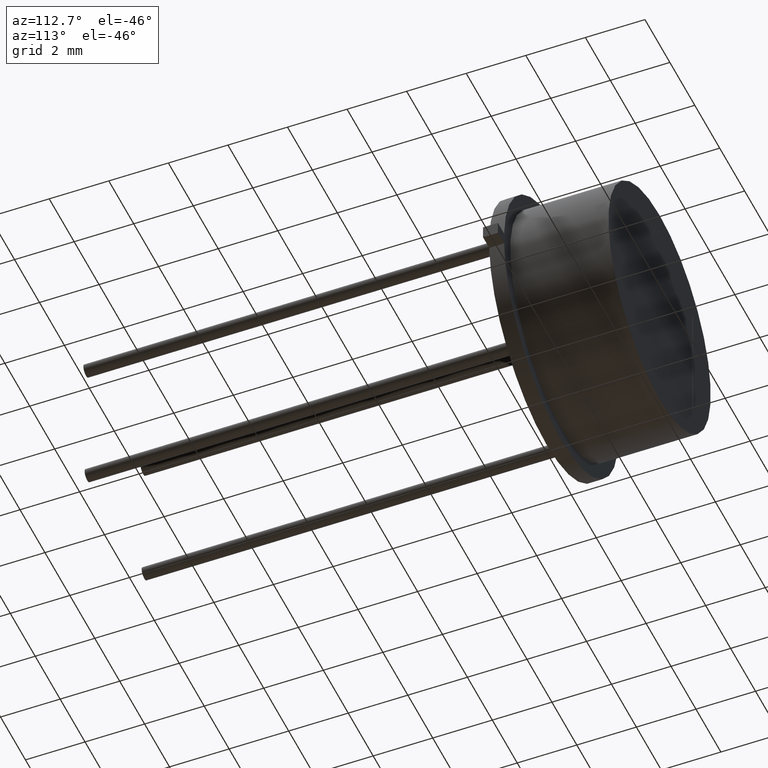
[diagram: clean part render]
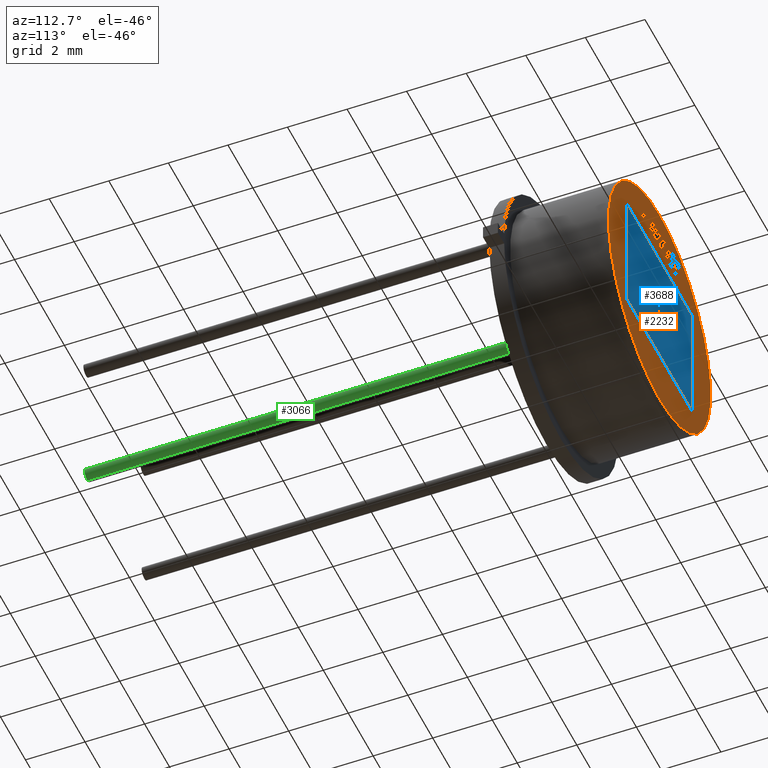
[diagram: same view with three faces highlighted in distinct colors, each labeled with its STEP entity id]
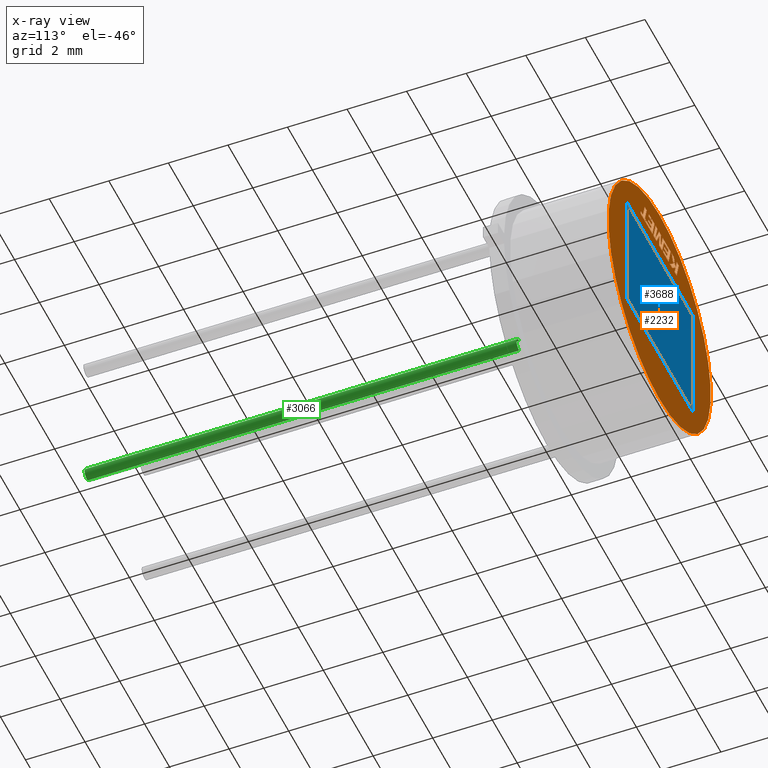
[diagram: x-ray of the same camera — body ghosted, the three highlighted faces saturated]
A machine part, auxiliary view with three faces highlighted in distinct colors.
The next image is the same camera in x-ray (body ghosted, the three faces saturated) — at least one of them is partly hidden behind the body in this view.
Their STEP definitions:

[orange] entity #2232 — the highlighted planar face has unit normal (0, 1, 0).
#8 = DIRECTION ( 'NONE',  ( 0.2740217765954173212, 0.000000000000000000, -0.9617234872620566977 ) ) ;
#21 = VERTEX_POINT ( 'NONE', #585 ) ;
#24 = LINE ( 'NONE', #2102, #407 ) ;
#46 = LINE ( 'NONE', #1209, #1315 ) ;
#51 = DIRECTION ( 'NONE',  ( -1.000000000000000000, 0.000000000000000000, 0.000000000000000000 ) ) ;
#58 = CARTESIAN_POINT ( 'NONE',  ( 0.2352780391836851726, 3.799999999999999822, 2.722722491663860378 ) ) ;
#60 = ORIENTED_EDGE ( 'NONE', *, *, #1427, .F. ) ;
#64 = CARTESIAN_POINT ( 'NONE',  ( -1.197993548261745200, 3.799999999999999822, 2.722722491663860378 ) ) ;
#75 = EDGE_CURVE ( 'NONE', #1668, #3182, #846, .T. ) ;
#92 = DIRECTION ( 'NONE',  ( 0.2793947940814922593, 0.000000000000000000, -0.9601763114346033579 ) ) ;
#97 = EDGE_CURVE ( 'NONE', #3127, #3292, #3133, .T. ) ;
#105 = EDGE_LOOP ( 'NONE', ( #2840, #125, #2720, #1811, #1765, #1533, #3351, #1490, #2059, #2377, #3464, #664, #2420, #1518, #2553, #2875, #994, #616, #484, #603, #568, #2386, #618 ) ) ;
#108 = VERTEX_POINT ( 'NONE', #3666 ) ;
#116 = VERTEX_POINT ( 'NONE', #2245 ) ;
#118 = ORIENTED_EDGE ( 'NONE', *, *, #793, .T. ) ;
#119 = DIRECTION ( 'NONE',  ( 0.2762437428917413618, 0.000000000000000000, -0.9610876102172796198 ) ) ;
#125 = ORIENTED_EDGE ( 'NONE', *, *, #788, .F. ) ;
#127 = VERTEX_POINT ( 'NONE', #1354 ) ;
#131 = CARTESIAN_POINT ( 'NONE',  ( -1.277915116476191937, 3.799999999999999822, 2.999153239349828137 ) ) ;
#135 = EDGE_CURVE ( 'NONE', #3507, #1576, #3436, .T. ) ;
#141 = VECTOR ( 'NONE', #1709, 1000.000000000000114 ) ;
#142 = CARTESIAN_POINT ( 'NONE',  ( -0.3063844529080870238, 3.799999999999999822, 2.837851701259268555 ) ) ;
#155 = VERTEX_POINT ( 'NONE', #390 ) ;
#159 = VECTOR ( 'NONE', #3352, 1000.000000000000000 ) ;
#164 = VECTOR ( 'NONE', #608, 1000.000000000000000 ) ;
#177 = DIRECTION ( 'NONE',  ( 0.2732148821746350209, 0.000000000000000000, -0.9619530280415464762 ) ) ;
#193 = CARTESIAN_POINT ( 'NONE',  ( 0.3266616003465986351, 3.799999999999999822, 3.327567856916902489 ) ) ;
#214 = EDGE_CURVE ( 'NONE', #3503, #2599, #2404, .T. ) ;
#217 = VERTEX_POINT ( 'NONE', #1216 ) ;
#238 = DIRECTION ( 'NONE',  ( 1.000000000000000000, 0.000000000000000000, 0.000000000000000000 ) ) ;
#239 = EDGE_CURVE ( 'NONE', #2314, #1973, #1868, .T. ) ;
#240 = FACE_OUTER_BOUND ( 'NONE', #2975, .T. ) ;
#271 = CARTESIAN_POINT ( 'NONE',  ( -1.014874821732917320, 3.799999999999999822, 2.722722491663860378 ) ) ;
#273 = DIRECTION ( 'NONE',  ( 1.000000000000000000, 0.000000000000000000, 0.000000000000000000 ) ) ;
#274 = CARTESIAN_POINT ( 'NONE',  ( 0.02096596677082979837, 3.799999999999999822, 3.154831791910173155 ) ) ;
#275 = EDGE_CURVE ( 'NONE', #2193, #442, #2378, .T. ) ;
#278 = CARTESIAN_POINT ( 'NONE',  ( 1.544396534510452446, 3.799999999999999822, 2.722722491663860378 ) ) ;
#280 = ORIENTED_EDGE ( 'NONE', *, *, #2206, .F. ) ;
#293 = DIRECTION ( 'NONE',  ( 0.7145695586381818343, -0.000000000000000000, -0.6995643972270416677 ) ) ;
#298 = VECTOR ( 'NONE', #1841, 1000.000000000000000 ) ;
#300 = VECTOR ( 'NONE', #416, 999.9999999999998863 ) ;
#308 = LINE ( 'NONE', #3185, #1702 ) ;
#316 = LINE ( 'NONE', #890, #896 ) ;
#324 = VERTEX_POINT ( 'NONE', #483 ) ;
#326 = ORIENTED_EDGE ( 'NONE', *, *, #3218, .F. ) ;
#328 = VECTOR ( 'NONE', #1692, 1000.000000000000000 ) ;
#334 = DIRECTION ( 'NONE',  ( -0.3829140317376996117, -0.000000000000000000, -0.9237839814038669717 ) ) ;
#344 = VECTOR ( 'NONE', #1333, 1000.000000000000114 ) ;
#368 = VERTEX_POINT ( 'NONE', #3694 ) ;
#377 = CARTESIAN_POINT ( 'NONE',  ( -1.277915116476191937, 3.799999999999999822, 2.999153239349828137 ) ) ;
#378 = EDGE_CURVE ( 'NONE', #962, #116, #2293, .T. ) ;
#380 = VERTEX_POINT ( 'NONE', #1434 ) ;
#390 = CARTESIAN_POINT ( 'NONE',  ( 0.9068115928987536822, 3.799999999999999822, 3.062168003293149088 ) ) ;
#398 = ORIENTED_EDGE ( 'NONE', *, *, #1995, .F. ) ;
#407 = VECTOR ( 'NONE', #3554, 999.9999999999998863 ) ;
#410 = CARTESIAN_POINT ( 'NONE',  ( -0.6894275595086473141, 3.799999999999999822, 3.212495659277052162 ) ) ;
#416 = DIRECTION ( 'NONE',  ( -0.2763173343569890750, 0.000000000000000000, 0.9610664548998929524 ) ) ;
#423 = CARTESIAN_POINT ( 'NONE',  ( 0.1729610434427197030, 3.799999999999999822, 3.327567856916902489 ) ) ;
#433 = CARTESIAN_POINT ( 'NONE',  ( -0.3063844529080870238, 3.799999999999999822, 2.837851701259268555 ) ) ;
#437 = LINE ( 'NONE', #3024, #3580 ) ;
#442 = VERTEX_POINT ( 'NONE', #1703 ) ;
#457 = EDGE_CURVE ( 'NONE', #1576, #1369, #1759, .T. ) ;
#459 = VECTOR ( 'NONE', #3060, 1000.000000000000000 ) ;
#462 = CARTESIAN_POINT ( 'NONE',  ( 0.04422658996259751230, 3.799999999999999822, 2.722722491663860378 ) ) ;
#483 = CARTESIAN_POINT ( 'NONE',  ( -1.372045535075434586, 3.799999999999999822, 3.327567856916902045 ) ) ;
#484 = ORIENTED_EDGE ( 'NONE', *, *, #3184, .F. ) ;
#492 = CARTESIAN_POINT ( 'NONE',  ( 0.8564314141849102002, 3.799999999999999822, 3.327567856916902489 ) ) ;
#494 = DIRECTION ( 'NONE',  ( -0.4443210308328943148, 0.000000000000000000, 0.8958676361827087042 ) ) ;
#501 = ORIENTED_EDGE ( 'NONE', *, *, #3627, .F. ) ;
#505 = DIRECTION ( 'NONE',  ( 1.000000000000000000, 0.000000000000000000, 0.000000000000000000 ) ) ;
#513 = LINE ( 'NONE', #1682, #1991 ) ;
#524 = CARTESIAN_POINT ( 'NONE',  ( -0.7205248232080316839, 3.799999999999999822, 2.722722491663860378 ) ) ;
#536 = LINE ( 'NONE', #1418, #2850 ) ;
#544 = CARTESIAN_POINT ( 'NONE',  ( 1.204947344205162141, 3.799999999999999822, 3.327567856916902489 ) ) ;
#567 = CARTESIAN_POINT ( 'NONE',  ( -0.5819581821491104368, 3.799999999999999822, 2.837851701259268555 ) ) ;
#568 = ORIENTED_EDGE ( 'NONE', *, *, #135, .F. ) ;
#572 = VECTOR ( 'NONE', #2805, 1000.000000000000000 ) ;
#577 = CARTESIAN_POINT ( 'NONE',  ( 0.5734277401129395102, 3.799999999999999822, 2.722722491663860378 ) ) ;
#581 = CARTESIAN_POINT ( 'NONE',  ( -0.7205248232080316839, 3.799999999999999822, 2.722722491663860378 ) ) ;
#585 = CARTESIAN_POINT ( 'NONE',  ( -0.08835785754342240228, 3.799999999999999822, 2.789089926475185610 ) ) ;
#595 = CARTESIAN_POINT ( 'NONE',  ( -0.3550873766402318221, 3.799999999999999822, 2.950352843563088800 ) ) ;
#603 = ORIENTED_EDGE ( 'NONE', *, *, #457, .F. ) ;
#608 = DIRECTION ( 'NONE',  ( -0.2762033010251998544, -0.000000000000000000, 0.9610992334315863195 ) ) ;
#612 = DIRECTION ( 'NONE',  ( 0.9999891854650020395, 0.000000000000000000, 0.004650693823686223409 ) ) ;
#614 = VECTOR ( 'NONE', #92, 1000.000000000000114 ) ;
#616 = ORIENTED_EDGE ( 'NONE', *, *, #3574, .F. ) ;
#618 = ORIENTED_EDGE ( 'NONE', *, *, #621, .F. ) ;
#621 = EDGE_CURVE ( 'NONE', #2967, #3542, #437, .T. ) ;
#623 = CARTESIAN_POINT ( 'NONE',  ( -1.146090599062761228, 3.799999999999999822, 3.327567856916902045 ) ) ;
#631 = ORIENTED_EDGE ( 'NONE', *, *, #3668, .F. ) ;
#664 = ORIENTED_EDGE ( 'NONE', *, *, #214, .F. ) ;
#677 = EDGE_CURVE ( 'NONE', #726, #1099, #536, .T. ) ;
#682 = CARTESIAN_POINT ( 'NONE',  ( -1.370213795595926376, 3.799999999999999822, 2.722722491663860378 ) ) ;
#704 = CARTESIAN_POINT ( 'NONE',  ( -0.2736853371326442574, 3.799999999999999822, 2.722722491663860378 ) ) ;
#724 = VERTEX_POINT ( 'NONE', #864 ) ;
#725 = CARTESIAN_POINT ( 'NONE',  ( 0.9890927199944663517, 3.799999999999999822, 2.838651707748462094 ) ) ;
#726 = VERTEX_POINT ( 'NONE', #577 ) ;
#735 = VERTEX_POINT ( 'NONE', #3433 ) ;
#751 = EDGE_CURVE ( 'NONE', #380, #2047, #1740, .T. ) ;
#761 = ORIENTED_EDGE ( 'NONE', *, *, #1489, .F. ) ;
#775 = CARTESIAN_POINT ( 'NONE',  ( 1.032649854865216765, 3.799999999999999822, 3.327567856916902489 ) ) ;
#788 = EDGE_CURVE ( 'NONE', #116, #3741, #308, .T. ) ;
#789 = DIRECTION ( 'NONE',  ( 0.4668459304955159817, 0.000000000000000000, -0.8843386665637638089 ) ) ;
#793 = EDGE_CURVE ( 'NONE', #442, #2193, #1527, .T. ) ;
#812 = ORIENTED_EDGE ( 'NONE', *, *, #2894, .F. ) ;
#846 = LINE ( 'NONE', #2262, #3596 ) ;
#854 = CARTESIAN_POINT ( 'NONE',  ( 5.021051876504147385E-16, 3.799999999999999822, 4.099999999999999645 ) ) ;
#857 = VECTOR ( 'NONE', #3502, 1000.000000000000000 ) ;
#864 = CARTESIAN_POINT ( 'NONE',  ( 2.650000000000000355, 3.799999999999999822, 2.149999999999999911 ) ) ;
#872 = VERTEX_POINT ( 'NONE', #1199 ) ;
#886 = DIRECTION ( 'NONE',  ( -1.000000000000000000, 0.000000000000000000, 0.000000000000000000 ) ) ;
#890 = CARTESIAN_POINT ( 'NONE',  ( -0.8158258510624085691, 3.799999999999999822, 2.722722491663860378 ) ) ;
#896 = VECTOR ( 'NONE', #293, 1000.000000000000114 ) ;
#901 = VERTEX_POINT ( 'NONE', #2935 ) ;
#904 = DIRECTION ( 'NONE',  ( 0.000000000000000000, 0.000000000000000000, 1.000000000000000000 ) ) ;
#910 = DIRECTION ( 'NONE',  ( -1.000000000000000000, 0.000000000000000000, 0.000000000000000000 ) ) ;
#911 = EDGE_CURVE ( 'NONE', #324, #2668, #2431, .T. ) ;
#919 = EDGE_CURVE ( 'NONE', #2047, #1032, #2414, .T. ) ;
#930 = CARTESIAN_POINT ( 'NONE',  ( 1.510830940448968152, 3.799999999999999822, 2.839520033916167918 ) ) ;
#943 = CARTESIAN_POINT ( 'NONE',  ( -2.649999999999999467, 3.799999999999999822, 2.149999999999999911 ) ) ;
#962 = VERTEX_POINT ( 'NONE', #193 ) ;
#967 = VECTOR ( 'NONE', #1525, 1000.000000000000000 ) ;
#974 = CARTESIAN_POINT ( 'NONE',  ( -0.8945749709263431937, 3.799999999999999822, 3.327567856916902489 ) ) ;
#978 = EDGE_CURVE ( 'NONE', #1232, #724, #1026, .T. ) ;
#992 = DIRECTION ( 'NONE',  ( 0.2755265765475247153, -0.000000000000000000, -0.9612934544747513410 ) ) ;
#994 = ORIENTED_EDGE ( 'NONE', *, *, #75, .F. ) ;
#1004 = ORIENTED_EDGE ( 'NONE', *, *, #1541, .F. ) ;
#1026 = LINE ( 'NONE', #2205, #3151 ) ;
#1032 = VERTEX_POINT ( 'NONE', #3604 ) ;
#1044 = LINE ( 'NONE', #2500, #1080 ) ;
#1068 = CARTESIAN_POINT ( 'NONE',  ( -1.372045535075434586, 3.799999999999999822, 3.327567856916902045 ) ) ;
#1074 = LINE ( 'NONE', #2032, #3010 ) ;
#1080 = VECTOR ( 'NONE', #505, 1000.000000000000000 ) ;
#1090 = CARTESIAN_POINT ( 'NONE',  ( -0.2133556524379435493, 3.799999999999999822, 2.722722491663860378 ) ) ;
#1097 = VECTOR ( 'NONE', #1763, 1000.000000000000000 ) ;
#1099 = VERTEX_POINT ( 'NONE', #1426 ) ;
#1111 = DIRECTION ( 'NONE',  ( 0.2759782365590804365, 0.000000000000000000, -0.9611638845408936316 ) ) ;
#1145 = CARTESIAN_POINT ( 'NONE',  ( 0.6043723584137968841, 3.799999999999999822, 3.212473590134040879 ) ) ;
#1148 = FACE_BOUND ( 'NONE', #2963, .T. ) ;
#1156 = ORIENTED_EDGE ( 'NONE', *, *, #1859, .F. ) ;
#1170 = LINE ( 'NONE', #2531, #2522 ) ;
#1188 = CARTESIAN_POINT ( 'NONE',  ( 0.3266616003465985241, 3.799999999999999822, 3.327567856916902489 ) ) ;
#1189 = ORIENTED_EDGE ( 'NONE', *, *, #1559, .F. ) ;
#1194 = EDGE_CURVE ( 'NONE', #3182, #3400, #2336, .T. ) ;
#1197 = CARTESIAN_POINT ( 'NONE',  ( -1.544035895002037861, 3.799999999999999822, 3.327567856916902045 ) ) ;
#1199 = CARTESIAN_POINT ( 'NONE',  ( 1.345229861249798820, 3.799999999999999822, 2.839506887099636501 ) ) ;
#1201 = LINE ( 'NONE', #462, #1513 ) ;
#1207 = VECTOR ( 'NONE', #2753, 1000.000000000000000 ) ;
#1209 = CARTESIAN_POINT ( 'NONE',  ( 0.3283388553289040557, 3.799999999999999822, 2.786496801997095929 ) ) ;
#1216 = CARTESIAN_POINT ( 'NONE',  ( 1.204947344205162141, 3.799999999999999822, 3.327567856916902489 ) ) ;
#1223 = VERTEX_POINT ( 'NONE', #2111 ) ;
#1232 = VERTEX_POINT ( 'NONE', #943 ) ;
#1252 = VECTOR ( 'NONE', #3693, 1000.000000000000114 ) ;
#1264 = LINE ( 'NONE', #544, #1398 ) ;
#1281 = VERTEX_POINT ( 'NONE', #3065 ) ;
#1303 = LINE ( 'NONE', #423, #1680 ) ;
#1306 = LINE ( 'NONE', #2462, #3673 ) ;
#1312 = EDGE_CURVE ( 'NONE', #368, #155, #1652, .T. ) ;
#1315 = VECTOR ( 'NONE', #2350, 1000.000000000000227 ) ;
#1330 = VERTEX_POINT ( 'NONE', #725 ) ;
#1333 = DIRECTION ( 'NONE',  ( -0.2765379750249964408, 0.000000000000000000, 0.9610029908221277006 ) ) ;
#1344 = LINE ( 'NONE', #1363, #2056 ) ;
#1354 = CARTESIAN_POINT ( 'NONE',  ( 0.04270527438447691004, 3.799999999999999822, 3.327567856916902489 ) ) ;
#1363 = CARTESIAN_POINT ( 'NONE',  ( -2.649999999999999911, 3.799999999999999822, -2.149999999999999911 ) ) ;
#1364 = EDGE_CURVE ( 'NONE', #21, #2757, #1306, .T. ) ;
#1369 = VERTEX_POINT ( 'NONE', #410 ) ;
#1372 = DIRECTION ( 'NONE',  ( 1.000000000000000000, 0.000000000000000000, 0.000000000000000000 ) ) ;
#1398 = VECTOR ( 'NONE', #119, 1000.000000000000114 ) ;
#1408 = CARTESIAN_POINT ( 'NONE',  ( -0.3506312490297152640, 3.799999999999999822, 3.327567856916902489 ) ) ;
#1414 = CARTESIAN_POINT ( 'NONE',  ( 0.9068115928987536822, 3.799999999999999822, 3.062168003293149088 ) ) ;
#1418 = CARTESIAN_POINT ( 'NONE',  ( 0.5734277401129395102, 3.799999999999999822, 2.722722491663860378 ) ) ;
#1426 = CARTESIAN_POINT ( 'NONE',  ( 0.3994529953049368864, 3.799999999999999822, 3.327567856916902489 ) ) ;
#1427 = EDGE_CURVE ( 'NONE', #3122, #324, #3119, .T. ) ;
#1434 = CARTESIAN_POINT ( 'NONE',  ( 0.9387493231880299493, 3.799999999999999822, 2.950373073613168362 ) ) ;
#1440 = DIRECTION ( 'NONE',  ( 0.000000000000000000, 1.000000000000000000, 0.000000000000000000 ) ) ;
#1464 = CARTESIAN_POINT ( 'NONE',  ( 0.000000000000000000, 3.799999999999999822, 0.000000000000000000 ) ) ;
#1478 = CARTESIAN_POINT ( 'NONE',  ( -0.3541347252375401378, 3.799999999999999822, 3.212495659277052162 ) ) ;
#1489 = EDGE_CURVE ( 'NONE', #1550, #726, #2551, .T. ) ;
#1490 = ORIENTED_EDGE ( 'NONE', *, *, #1364, .F. ) ;
#1491 = DIRECTION ( 'NONE',  ( 0.000000000000000000, 1.000000000000000000, 0.000000000000000000 ) ) ;
#1499 = CARTESIAN_POINT ( 'NONE',  ( -0.9620560030369937898, 3.799999999999999822, 3.327567856916902045 ) ) ;
#1505 = LINE ( 'NONE', #1197, #164 ) ;
#1509 = VECTOR ( 'NONE', #2305, 1000.000000000000000 ) ;
#1510 = CARTESIAN_POINT ( 'NONE',  ( 0.000000000000000000, 3.799999999999999822, 0.000000000000000000 ) ) ;
#1513 = VECTOR ( 'NONE', #910, 1000.000000000000000 ) ;
#1518 = ORIENTED_EDGE ( 'NONE', *, *, #1917, .F. ) ;
#1525 = DIRECTION ( 'NONE',  ( -1.000000000000000000, -0.000000000000000000, -0.000000000000000000 ) ) ;
#1527 = CIRCLE ( 'NONE', #1646, 4.099999999999999645 ) ;
#1530 = EDGE_CURVE ( 'NONE', #1099, #3484, #3204, .T. ) ;
#1533 = ORIENTED_EDGE ( 'NONE', *, *, #2481, .F. ) ;
#1540 = VECTOR ( 'NONE', #51, 1000.000000000000000 ) ;
#1541 = EDGE_CURVE ( 'NONE', #3484, #2454, #1170, .T. ) ;
#1543 = VECTOR ( 'NONE', #2567, 1000.000000000000000 ) ;
#1550 = VERTEX_POINT ( 'NONE', #278 ) ;
#1559 = EDGE_CURVE ( 'NONE', #735, #3263, #2873, .T. ) ;
#1560 = CARTESIAN_POINT ( 'NONE',  ( -2.649999999999999911, 3.799999999999999822, -2.149999999999999911 ) ) ;
#1565 = VECTOR ( 'NONE', #3035, 1000.000000000000114 ) ;
#1570 = VECTOR ( 'NONE', #612, 1000.000000000000114 ) ;
#1576 = VERTEX_POINT ( 'NONE', #3145 ) ;
#1591 = CARTESIAN_POINT ( 'NONE',  ( -0.3870251069302115821, 3.799999999999999822, 3.062168003291943830 ) ) ;
#1592 = DIRECTION ( 'NONE',  ( 0.05375259206908451076, 0.000000000000000000, -0.9985542843760946141 ) ) ;
#1599 = EDGE_CURVE ( 'NONE', #3534, #3249, #46, .T. ) ;
#1600 = LINE ( 'NONE', #1560, #967 ) ;
#1607 = CARTESIAN_POINT ( 'NONE',  ( 0.04422658996259751230, 3.799999999999999822, 2.722722491663860378 ) ) ;
#1623 = EDGE_CURVE ( 'NONE', #724, #3002, #3042, .T. ) ;
#1646 = AXIS2_PLACEMENT_3D ( 'NONE', #1464, #1440, #904 ) ;
#1649 = CARTESIAN_POINT ( 'NONE',  ( 0.000000000000000000, 3.799999999999999822, 0.000000000000000000 ) ) ;
#1652 = LINE ( 'NONE', #2240, #572 ) ;
#1654 = EDGE_LOOP ( 'NONE', ( #501, #326, #2624, #2574, #631, #1974, #1869, #2083, #1004, #1822, #3196, #761, #2777, #1156, #812, #280, #1889 ) ) ;
#1655 = CARTESIAN_POINT ( 'NONE',  ( -1.098185842724294980, 3.799999999999999822, 2.999153239349822364 ) ) ;
#1658 = LINE ( 'NONE', #2811, #3148 ) ;
#1662 = LINE ( 'NONE', #775, #2004 ) ;
#1663 = EDGE_CURVE ( 'NONE', #1281, #1232, #1344, .T. ) ;
#1668 = VERTEX_POINT ( 'NONE', #1591 ) ;
#1680 = VECTOR ( 'NONE', #2764, 1000.000000000000000 ) ;
#1682 = CARTESIAN_POINT ( 'NONE',  ( 0.2352780391836851726, 3.799999999999999822, 2.722722491663860378 ) ) ;
#1689 = VECTOR ( 'NONE', #177, 1000.000000000000114 ) ;
#1692 = DIRECTION ( 'NONE',  ( 1.000000000000000000, 0.000000000000000000, 0.000000000000000000 ) ) ;
#1702 = VECTOR ( 'NONE', #2861, 1000.000000000000000 ) ;
#1703 = CARTESIAN_POINT ( 'NONE',  ( 0.000000000000000000, 3.799999999999999822, -4.099999999999999645 ) ) ;
#1709 = DIRECTION ( 'NONE',  ( -0.2762517575166094086, 0.000000000000000000, 0.9610853065513926818 ) ) ;
#1711 = CARTESIAN_POINT ( 'NONE',  ( 0.04270527438447691004, 3.799999999999999822, 3.327567856916902489 ) ) ;
#1733 = CARTESIAN_POINT ( 'NONE',  ( 1.022439197826686463, 3.799999999999999822, 2.722722491663860378 ) ) ;
#1740 = LINE ( 'NONE', #2557, #1097 ) ;
#1748 = CARTESIAN_POINT ( 'NONE',  ( 1.510830940448968152, 3.799999999999999822, 2.839520033916167918 ) ) ;
#1749 = EDGE_CURVE ( 'NONE', #1920, #3122, #1505, .T. ) ;
#1759 = LINE ( 'NONE', #1478, #1543 ) ;
#1763 = DIRECTION ( 'NONE',  ( -1.000000000000000000, 0.000000000000000000, 0.000000000000000000 ) ) ;
#1765 = ORIENTED_EDGE ( 'NONE', *, *, #1599, .F. ) ;
#1770 = CARTESIAN_POINT ( 'NONE',  ( 2.649999999999999911, 3.799999999999999822, -2.149999999999999911 ) ) ;
#1801 = CARTESIAN_POINT ( 'NONE',  ( -1.098185842724294980, 3.799999999999999822, 2.999153239349822364 ) ) ;
#1811 = ORIENTED_EDGE ( 'NONE', *, *, #2006, .F. ) ;
#1822 = ORIENTED_EDGE ( 'NONE', *, *, #1530, .F. ) ;
#1840 = ORIENTED_EDGE ( 'NONE', *, *, #1749, .F. ) ;
#1841 = DIRECTION ( 'NONE',  ( -1.000000000000000000, -0.000000000000000000, -0.000000000000000000 ) ) ;
#1843 = CARTESIAN_POINT ( 'NONE',  ( -0.1185410908447001727, 3.799999999999999822, 3.327567856916902489 ) ) ;
#1857 = VECTOR ( 'NONE', #8, 1000.000000000000114 ) ;
#1859 = EDGE_CURVE ( 'NONE', #872, #3635, #3567, .T. ) ;
#1866 = VECTOR ( 'NONE', #3494, 1000.000000000000114 ) ;
#1868 = LINE ( 'NONE', #1499, #2028 ) ;
#1869 = ORIENTED_EDGE ( 'NONE', *, *, #3617, .F. ) ;
#1877 = CARTESIAN_POINT ( 'NONE',  ( 0.8890900698612380637, 3.799999999999999822, 3.212473590134040879 ) ) ;
#1882 = EDGE_CURVE ( 'NONE', #3599, #735, #3017, .T. ) ;
#1885 = CARTESIAN_POINT ( 'NONE',  ( 0.6791830800944804736, 3.799999999999999822, 2.950373073613168362 ) ) ;
#1889 = ORIENTED_EDGE ( 'NONE', *, *, #2375, .F. ) ;
#1901 = VERTEX_POINT ( 'NONE', #1655 ) ;
#1909 = ORIENTED_EDGE ( 'NONE', *, *, #2550, .F. ) ;
#1911 = VECTOR ( 'NONE', #1942, 1000.000000000000000 ) ;
#1917 = EDGE_CURVE ( 'NONE', #3697, #2078, #1044, .T. ) ;
#1919 = CARTESIAN_POINT ( 'NONE',  ( -0.6146940798320081889, 3.799999999999999822, 2.950352843563088800 ) ) ;
#1920 = VERTEX_POINT ( 'NONE', #2808 ) ;
#1935 = CARTESIAN_POINT ( 'NONE',  ( -0.2133556524379435493, 3.799999999999999822, 2.722722491663860378 ) ) ;
#1942 = DIRECTION ( 'NONE',  ( 1.000000000000000000, -0.000000000000000000, -0.000000000000000000 ) ) ;
#1947 = FACE_BOUND ( 'NONE', #3584, .T. ) ;
#1952 = EDGE_CURVE ( 'NONE', #2599, #3127, #3365, .T. ) ;
#1955 = ORIENTED_EDGE ( 'NONE', *, *, #1623, .F. ) ;
#1972 = DIRECTION ( 'NONE',  ( -1.000000000000000000, 0.000000000000000000, 0.000000000000000000 ) ) ;
#1973 = VERTEX_POINT ( 'NONE', #3647 ) ;
#1974 = ORIENTED_EDGE ( 'NONE', *, *, #1312, .F. ) ;
#1991 = VECTOR ( 'NONE', #494, 1000.000000000000227 ) ;
#1995 = EDGE_CURVE ( 'NONE', #108, #3599, #2555, .T. ) ;
#2004 = VECTOR ( 'NONE', #273, 1000.000000000000000 ) ;
#2006 = EDGE_CURVE ( 'NONE', #3249, #962, #1303, .T. ) ;
#2009 = LINE ( 'NONE', #2920, #3208 ) ;
#2028 = VECTOR ( 'NONE', #3561, 1000.000000000000000 ) ;
#2032 = CARTESIAN_POINT ( 'NONE',  ( -0.2429706057536529240, 3.799999999999999822, 3.327567856916902489 ) ) ;
#2045 = DIRECTION ( 'NONE',  ( 0.2793947940876950198, 0.000000000000000000, -0.9601763114327985793 ) ) ;
#2047 = VERTEX_POINT ( 'NONE', #1885 ) ;
#2056 = VECTOR ( 'NONE', #3672, 1000.000000000000000 ) ;
#2059 = ORIENTED_EDGE ( 'NONE', *, *, #2994, .F. ) ;
#2073 = VECTOR ( 'NONE', #886, 1000.000000000000000 ) ;
#2078 = VERTEX_POINT ( 'NONE', #142 ) ;
#2083 = ORIENTED_EDGE ( 'NONE', *, *, #2390, .F. ) ;
#2095 = EDGE_CURVE ( 'NONE', #2757, #127, #2776, .T. ) ;
#2097 = LINE ( 'NONE', #1801, #2238 ) ;
#2102 = CARTESIAN_POINT ( 'NONE',  ( 0.7119189777766649074, 3.799999999999999822, 2.837871931309089657 ) ) ;
#2111 = CARTESIAN_POINT ( 'NONE',  ( -0.6465950282145045414, 3.799999999999999822, 3.062168003291943830 ) ) ;
#2142 = CARTESIAN_POINT ( 'NONE',  ( 1.172972832008429611, 3.799999999999999822, 2.839506887098071086 ) ) ;
#2152 = DIRECTION ( 'NONE',  ( 0.9999999968487351953, 0.000000000000000000, 7.938847109812663372E-05 ) ) ;
#2169 = VECTOR ( 'NONE', #3162, 1000.000000000000000 ) ;
#2179 = AXIS2_PLACEMENT_3D ( 'NONE', #1510, #1491, #2327 ) ;
#2193 = VERTEX_POINT ( 'NONE', #854 ) ;
#2205 = CARTESIAN_POINT ( 'NONE',  ( -2.649999999999999467, 3.799999999999999822, 2.149999999999999911 ) ) ;
#2206 = EDGE_CURVE ( 'NONE', #3090, #217, #1662, .T. ) ;
#2232 = ADVANCED_FACE ( 'NONE', ( #1148, #240, #1947, #2800, #3425 ), #3410, .T. ) ;
#2238 = VECTOR ( 'NONE', #334, 1000.000000000000000 ) ;
#2240 = CARTESIAN_POINT ( 'NONE',  ( 0.6472821317127167573, 3.799999999999999822, 3.062168003293149088 ) ) ;
#2245 = CARTESIAN_POINT ( 'NONE',  ( 0.5005591026630323848, 3.799999999999999822, 2.722722491663860378 ) ) ;
#2248 = DIRECTION ( 'NONE',  ( 0.3725077383644744278, -0.000000000000000000, 0.9280290862136726382 ) ) ;
#2255 = VECTOR ( 'NONE', #992, 1000.000000000000114 ) ;
#2262 = CARTESIAN_POINT ( 'NONE',  ( -0.3870251069302115821, 3.799999999999999822, 3.062168003291943830 ) ) ;
#2264 = EDGE_CURVE ( 'NONE', #3635, #1550, #3247, .T. ) ;
#2269 = ORIENTED_EDGE ( 'NONE', *, *, #1663, .F. ) ;
#2273 = EDGE_CURVE ( 'NONE', #1973, #1901, #2097, .T. ) ;
#2274 = DIRECTION ( 'NONE',  ( 0.2729786930695254354, 0.000000000000000000, -0.9620200793798712180 ) ) ;
#2293 = LINE ( 'NONE', #1188, #857 ) ;
#2305 = DIRECTION ( 'NONE',  ( 0.2745159998572624938, 0.000000000000000000, -0.9615825319869155674 ) ) ;
#2314 = VERTEX_POINT ( 'NONE', #623 ) ;
#2327 = DIRECTION ( 'NONE',  ( 0.000000000000000000, -0.000000000000000000, 1.000000000000000000 ) ) ;
#2336 = LINE ( 'NONE', #3486, #2073 ) ;
#2348 = CARTESIAN_POINT ( 'NONE',  ( -0.2429706057536529240, 3.799999999999999822, 3.327567856916902489 ) ) ;
#2350 = DIRECTION ( 'NONE',  ( -0.2760118818968599341, 0.000000000000000000, 0.9611542233438677973 ) ) ;
#2375 = EDGE_CURVE ( 'NONE', #2707, #3090, #2716, .T. ) ;
#2377 = ORIENTED_EDGE ( 'NONE', *, *, #97, .F. ) ;
#2378 = CIRCLE ( 'NONE', #3043, 4.099999999999999645 ) ;
#2386 = ORIENTED_EDGE ( 'NONE', *, *, #3724, .F. ) ;
#2390 = EDGE_CURVE ( 'NONE', #2454, #901, #2774, .T. ) ;
#2404 = LINE ( 'NONE', #704, #1540 ) ;
#2411 = VECTOR ( 'NONE', #2152, 1000.000000000000227 ) ;
#2414 = LINE ( 'NONE', #2735, #614 ) ;
#2420 = ORIENTED_EDGE ( 'NONE', *, *, #3469, .F. ) ;
#2431 = LINE ( 'NONE', #131, #2255 ) ;
#2454 = VERTEX_POINT ( 'NONE', #1877 ) ;
#2462 = CARTESIAN_POINT ( 'NONE',  ( -0.08835785754342240228, 3.799999999999999822, 2.789089926475185610 ) ) ;
#2472 = LINE ( 'NONE', #433, #1689 ) ;
#2481 = EDGE_CURVE ( 'NONE', #127, #3534, #3118, .T. ) ;
#2500 = CARTESIAN_POINT ( 'NONE',  ( -0.5819581821491104368, 3.799999999999999822, 2.837851701259268555 ) ) ;
#2516 = DIRECTION ( 'NONE',  ( -0.05596501978068519484, 0.000000000000000000, 0.9984327301130244692 ) ) ;
#2522 = VECTOR ( 'NONE', #2274, 1000.000000000000227 ) ;
#2531 = CARTESIAN_POINT ( 'NONE',  ( 0.8564314141849102002, 3.799999999999999822, 3.327567856916902489 ) ) ;
#2550 = EDGE_CURVE ( 'NONE', #2668, #2314, #1658, .T. ) ;
#2551 = LINE ( 'NONE', #1733, #2885 ) ;
#2553 = ORIENTED_EDGE ( 'NONE', *, *, #3607, .F. ) ;
#2555 = LINE ( 'NONE', #3432, #3132 ) ;
#2557 = CARTESIAN_POINT ( 'NONE',  ( 0.9387493231880299493, 3.799999999999999822, 2.950373073613168362 ) ) ;
#2565 = DIRECTION ( 'NONE',  ( -0.2764273280489792928, 0.000000000000000000, 0.9610348236706627301 ) ) ;
#2567 = DIRECTION ( 'NONE',  ( -1.000000000000000000, 0.000000000000000000, 0.000000000000000000 ) ) ;
#2574 = ORIENTED_EDGE ( 'NONE', *, *, #751, .F. ) ;
#2582 = CARTESIAN_POINT ( 'NONE',  ( -1.197993548261745200, 3.799999999999999822, 2.722722491663860378 ) ) ;
#2592 = VECTOR ( 'NONE', #789, 1000.000000000000000 ) ;
#2599 = VERTEX_POINT ( 'NONE', #581 ) ;
#2613 = LINE ( 'NONE', #3740, #1570 ) ;
#2624 = ORIENTED_EDGE ( 'NONE', *, *, #919, .F. ) ;
#2639 = CARTESIAN_POINT ( 'NONE',  ( 0.1729610434427197030, 3.799999999999999822, 3.327567856916902489 ) ) ;
#2657 = EDGE_CURVE ( 'NONE', #3002, #1281, #1600, .T. ) ;
#2659 = ORIENTED_EDGE ( 'NONE', *, *, #911, .F. ) ;
#2668 = VERTEX_POINT ( 'NONE', #377 ) ;
#2685 = ORIENTED_EDGE ( 'NONE', *, *, #239, .F. ) ;
#2707 = VERTEX_POINT ( 'NONE', #3113 ) ;
#2715 = VECTOR ( 'NONE', #238, 1000.000000000000000 ) ;
#2716 = LINE ( 'NONE', #2142, #300 ) ;
#2720 = ORIENTED_EDGE ( 'NONE', *, *, #378, .F. ) ;
#2735 = CARTESIAN_POINT ( 'NONE',  ( 0.6791830800944801405, 3.799999999999999822, 2.950373073613168362 ) ) ;
#2753 = DIRECTION ( 'NONE',  ( -1.000000000000000000, 0.000000000000000000, 0.000000000000000000 ) ) ;
#2757 = VERTEX_POINT ( 'NONE', #2826 ) ;
#2764 = DIRECTION ( 'NONE',  ( 1.000000000000000000, 0.000000000000000000, 0.000000000000000000 ) ) ;
#2774 = LINE ( 'NONE', #3572, #1207 ) ;
#2775 = CARTESIAN_POINT ( 'NONE',  ( -1.544035895002037861, 3.799999999999999822, 3.327567856916902045 ) ) ;
#2776 = LINE ( 'NONE', #1843, #159 ) ;
#2777 = ORIENTED_EDGE ( 'NONE', *, *, #2264, .F. ) ;
#2800 = FACE_BOUND ( 'NONE', #105, .T. ) ;
#2805 = DIRECTION ( 'NONE',  ( 1.000000000000000000, 0.000000000000000000, 0.000000000000000000 ) ) ;
#2808 = CARTESIAN_POINT ( 'NONE',  ( -1.370213795595926376, 3.799999999999999822, 2.722722491663860378 ) ) ;
#2811 = CARTESIAN_POINT ( 'NONE',  ( -1.146090599062761228, 3.799999999999999822, 3.327567856916902045 ) ) ;
#2819 = DIRECTION ( 'NONE',  ( 0.000000000000000000, 0.000000000000000000, 1.000000000000000000 ) ) ;
#2826 = CARTESIAN_POINT ( 'NONE',  ( -0.1185410908447001727, 3.799999999999999822, 3.327567856916902489 ) ) ;
#2831 = LINE ( 'NONE', #3634, #2715 ) ;
#2840 = ORIENTED_EDGE ( 'NONE', *, *, #2950, .F. ) ;
#2850 = VECTOR ( 'NONE', #2565, 1000.000000000000114 ) ;
#2852 = LINE ( 'NONE', #1414, #3628 ) ;
#2856 = CARTESIAN_POINT ( 'NONE',  ( 0.3994529953049368864, 3.799999999999999822, 3.327567856916902489 ) ) ;
#2861 = DIRECTION ( 'NONE',  ( -1.000000000000000000, 0.000000000000000000, 0.000000000000000000 ) ) ;
#2873 = LINE ( 'NONE', #2582, #1252 ) ;
#2875 = ORIENTED_EDGE ( 'NONE', *, *, #1194, .F. ) ;
#2885 = VECTOR ( 'NONE', #1972, 1000.000000000000000 ) ;
#2894 = EDGE_CURVE ( 'NONE', #217, #872, #1264, .T. ) ;
#2909 = CARTESIAN_POINT ( 'NONE',  ( 1.032649854865216765, 3.799999999999999822, 3.327567856916902489 ) ) ;
#2920 = CARTESIAN_POINT ( 'NONE',  ( -0.6146940798320081889, 3.799999999999999822, 2.950352843563088800 ) ) ;
#2928 = ORIENTED_EDGE ( 'NONE', *, *, #3676, .F. ) ;
#2935 = CARTESIAN_POINT ( 'NONE',  ( 0.6043723584137968841, 3.799999999999999822, 3.212473590134040879 ) ) ;
#2950 = EDGE_CURVE ( 'NONE', #3741, #2967, #513, .T. ) ;
#2951 = ORIENTED_EDGE ( 'NONE', *, *, #2273, .F. ) ;
#2963 = EDGE_LOOP ( 'NONE', ( #1955, #3014, #2269, #2977 ) ) ;
#2967 = VERTEX_POINT ( 'NONE', #274 ) ;
#2975 = EDGE_LOOP ( 'NONE', ( #118, #3518 ) ) ;
#2977 = ORIENTED_EDGE ( 'NONE', *, *, #2657, .F. ) ;
#2994 = EDGE_CURVE ( 'NONE', #3292, #21, #1074, .T. ) ;
#3002 = VERTEX_POINT ( 'NONE', #1770 ) ;
#3003 = LINE ( 'NONE', #682, #298 ) ;
#3010 = VECTOR ( 'NONE', #1111, 1000.000000000000114 ) ;
#3014 = ORIENTED_EDGE ( 'NONE', *, *, #978, .F. ) ;
#3017 = LINE ( 'NONE', #3325, #1565 ) ;
#3024 = CARTESIAN_POINT ( 'NONE',  ( 0.02096596677082979837, 3.799999999999999822, 3.154831791910173155 ) ) ;
#3035 = DIRECTION ( 'NONE',  ( -0.7059037656364512969, -0.000000000000000000, 0.7083077534943960085 ) ) ;
#3042 = LINE ( 'NONE', #3082, #459 ) ;
#3043 = AXIS2_PLACEMENT_3D ( 'NONE', #1649, #3107, #2819 ) ;
#3060 = DIRECTION ( 'NONE',  ( -1.008560160451632221E-16, -0.000000000000000000, -1.000000000000000000 ) ) ;
#3065 = CARTESIAN_POINT ( 'NONE',  ( -2.649999999999999911, 3.799999999999999822, -2.149999999999999911 ) ) ;
#3082 = CARTESIAN_POINT ( 'NONE',  ( 2.649999999999999911, 3.799999999999999822, -2.149999999999999911 ) ) ;
#3090 = VERTEX_POINT ( 'NONE', #2909 ) ;
#3107 = DIRECTION ( 'NONE',  ( 0.000000000000000000, 1.000000000000000000, 0.000000000000000000 ) ) ;
#3113 = CARTESIAN_POINT ( 'NONE',  ( 1.172972832008429611, 3.799999999999999822, 2.839506887098071086 ) ) ;
#3115 = DIRECTION ( 'NONE',  ( 0.2746459304916900046, 0.000000000000000000, -0.9615454294334480068 ) ) ;
#3118 = LINE ( 'NONE', #1711, #2592 ) ;
#3119 = LINE ( 'NONE', #1068, #1911 ) ;
#3121 = CARTESIAN_POINT ( 'NONE',  ( 0.3283388553289040557, 3.799999999999999822, 2.786496801997095929 ) ) ;
#3122 = VERTEX_POINT ( 'NONE', #2775 ) ;
#3127 = VERTEX_POINT ( 'NONE', #974 ) ;
#3132 = VECTOR ( 'NONE', #3712, 1000.000000000000000 ) ;
#3133 = LINE ( 'NONE', #1408, #328 ) ;
#3145 = CARTESIAN_POINT ( 'NONE',  ( -0.3541347252375401378, 3.799999999999999822, 3.212495659277052162 ) ) ;
#3148 = VECTOR ( 'NONE', #2248, 1000.000000000000114 ) ;
#3151 = VECTOR ( 'NONE', #1372, 1000.000000000000000 ) ;
#3162 = DIRECTION ( 'NONE',  ( 1.000000000000000000, 0.000000000000000000, 0.000000000000000000 ) ) ;
#3182 = VERTEX_POINT ( 'NONE', #595 ) ;
#3184 = EDGE_CURVE ( 'NONE', #1369, #1223, #3239, .T. ) ;
#3185 = CARTESIAN_POINT ( 'NONE',  ( 0.5005591026630323848, 3.799999999999999822, 2.722722491663860378 ) ) ;
#3195 = LINE ( 'NONE', #1145, #1509 ) ;
#3196 = ORIENTED_EDGE ( 'NONE', *, *, #677, .F. ) ;
#3203 = CARTESIAN_POINT ( 'NONE',  ( -0.6894275595086473141, 3.799999999999999822, 3.212495659277052162 ) ) ;
#3204 = LINE ( 'NONE', #2856, #2169 ) ;
#3208 = VECTOR ( 'NONE', #2045, 1000.000000000000000 ) ;
#3218 = EDGE_CURVE ( 'NONE', #1032, #1330, #24, .T. ) ;
#3238 = ORIENTED_EDGE ( 'NONE', *, *, #3345, .F. ) ;
#3239 = LINE ( 'NONE', #3203, #1857 ) ;
#3246 = CARTESIAN_POINT ( 'NONE',  ( 1.345229861249798820, 3.799999999999999822, 2.839506887099636501 ) ) ;
#3247 = LINE ( 'NONE', #930, #1866 ) ;
#3249 = VERTEX_POINT ( 'NONE', #2639 ) ;
#3263 = VERTEX_POINT ( 'NONE', #64 ) ;
#3292 = VERTEX_POINT ( 'NONE', #2348 ) ;
#3325 = CARTESIAN_POINT ( 'NONE',  ( -1.271928860545124884, 3.799999999999999822, 2.980651939870694100 ) ) ;
#3345 = EDGE_CURVE ( 'NONE', #3263, #1920, #3003, .T. ) ;
#3351 = ORIENTED_EDGE ( 'NONE', *, *, #2095, .F. ) ;
#3352 = DIRECTION ( 'NONE',  ( 1.000000000000000000, 0.000000000000000000, 0.000000000000000000 ) ) ;
#3365 = LINE ( 'NONE', #524, #344 ) ;
#3388 = CARTESIAN_POINT ( 'NONE',  ( -0.2736853371326442574, 3.799999999999999822, 2.722722491663860378 ) ) ;
#3400 = VERTEX_POINT ( 'NONE', #1919 ) ;
#3410 = PLANE ( 'NONE',  #2179 ) ;
#3425 = FACE_BOUND ( 'NONE', #1654, .T. ) ;
#3432 = CARTESIAN_POINT ( 'NONE',  ( -1.014874821732917320, 3.799999999999999822, 2.722722491663860378 ) ) ;
#3433 = CARTESIAN_POINT ( 'NONE',  ( -1.271928860545124884, 3.799999999999999822, 2.980651939870694100 ) ) ;
#3436 = LINE ( 'NONE', #1935, #141 ) ;
#3442 = DIRECTION ( 'NONE',  ( 0.2746918797667230461, 0.000000000000000000, -0.9615323037684299079 ) ) ;
#3464 = ORIENTED_EDGE ( 'NONE', *, *, #1952, .F. ) ;
#3469 = EDGE_CURVE ( 'NONE', #2078, #3503, #2472, .T. ) ;
#3484 = VERTEX_POINT ( 'NONE', #492 ) ;
#3486 = CARTESIAN_POINT ( 'NONE',  ( -0.3550873766402318221, 3.799999999999999822, 2.950352843563088800 ) ) ;
#3494 = DIRECTION ( 'NONE',  ( 0.2762033010287643364, 0.000000000000000000, -0.9610992334305619167 ) ) ;
#3502 = DIRECTION ( 'NONE',  ( 0.2763139702539124665, 0.000000000000000000, -0.9610674221107070592 ) ) ;
#3503 = VERTEX_POINT ( 'NONE', #3388 ) ;
#3507 = VERTEX_POINT ( 'NONE', #1090 ) ;
#3518 = ORIENTED_EDGE ( 'NONE', *, *, #275, .T. ) ;
#3534 = VERTEX_POINT ( 'NONE', #3121 ) ;
#3542 = VERTEX_POINT ( 'NONE', #1607 ) ;
#3554 = DIRECTION ( 'NONE',  ( 0.9999960426590096541, 0.000000000000000000, 0.002813301676023196012 ) ) ;
#3561 = DIRECTION ( 'NONE',  ( 1.000000000000000000, -0.000000000000000000, -0.000000000000000000 ) ) ;
#3567 = LINE ( 'NONE', #3246, #2411 ) ;
#3572 = CARTESIAN_POINT ( 'NONE',  ( 0.8890900698612380637, 3.799999999999999822, 3.212473590134040879 ) ) ;
#3574 = EDGE_CURVE ( 'NONE', #1223, #1668, #2831, .T. ) ;
#3580 = VECTOR ( 'NONE', #1592, 1000.000000000000227 ) ;
#3584 = EDGE_LOOP ( 'NONE', ( #60, #1840, #3238, #1189, #3750, #398, #2928, #2951, #2685, #1909, #2659 ) ) ;
#3596 = VECTOR ( 'NONE', #3115, 999.9999999999998863 ) ;
#3599 = VERTEX_POINT ( 'NONE', #271 ) ;
#3604 = CARTESIAN_POINT ( 'NONE',  ( 0.7119189777766649074, 3.799999999999999822, 2.837871931309089657 ) ) ;
#3607 = EDGE_CURVE ( 'NONE', #3400, #3697, #2009, .T. ) ;
#3617 = EDGE_CURVE ( 'NONE', #901, #368, #3195, .T. ) ;
#3627 = EDGE_CURVE ( 'NONE', #1330, #2707, #2613, .T. ) ;
#3628 = VECTOR ( 'NONE', #3442, 1000.000000000000114 ) ;
#3634 = CARTESIAN_POINT ( 'NONE',  ( -0.6465950282145045414, 3.799999999999999822, 3.062168003291943830 ) ) ;
#3635 = VERTEX_POINT ( 'NONE', #1748 ) ;
#3647 = CARTESIAN_POINT ( 'NONE',  ( -0.9620560030369937898, 3.799999999999999822, 3.327567856916902045 ) ) ;
#3666 = CARTESIAN_POINT ( 'NONE',  ( -0.8158258510624085691, 3.799999999999999822, 2.722722491663860378 ) ) ;
#3668 = EDGE_CURVE ( 'NONE', #155, #380, #2852, .T. ) ;
#3672 = DIRECTION ( 'NONE',  ( 1.008560160451632221E-16, 0.000000000000000000, 1.000000000000000000 ) ) ;
#3673 = VECTOR ( 'NONE', #2516, 1000.000000000000114 ) ;
#3676 = EDGE_CURVE ( 'NONE', #1901, #108, #316, .T. ) ;
#3693 = DIRECTION ( 'NONE',  ( 0.2755520632520608304, -0.000000000000000000, -0.9612861490927310237 ) ) ;
#3694 = CARTESIAN_POINT ( 'NONE',  ( 0.6472821317127167573, 3.799999999999999822, 3.062168003293149088 ) ) ;
#3697 = VERTEX_POINT ( 'NONE', #567 ) ;
#3712 = DIRECTION ( 'NONE',  ( -1.000000000000000000, -0.000000000000000000, -0.000000000000000000 ) ) ;
#3724 = EDGE_CURVE ( 'NONE', #3542, #3507, #1201, .T. ) ;
#3740 = CARTESIAN_POINT ( 'NONE',  ( 0.9890927199944663517, 3.799999999999999822, 2.838651707748462094 ) ) ;
#3741 = VERTEX_POINT ( 'NONE', #58 ) ;
#3750 = ORIENTED_EDGE ( 'NONE', *, *, #1882, .F. ) ;

[blue] entity #3688 — the highlighted planar face has unit normal (0, 1, 0).
#279 = LINE ( 'NONE', #2055, #2681 ) ;
#348 = ORIENTED_EDGE ( 'NONE', *, *, #428, .T. ) ;
#425 = ORIENTED_EDGE ( 'NONE', *, *, #802, .T. ) ;
#428 = EDGE_CURVE ( 'NONE', #2464, #3027, #279, .T. ) ;
#598 = DIRECTION ( 'NONE',  ( 1.008560160451632221E-16, 0.000000000000000000, 1.000000000000000000 ) ) ;
#640 = VERTEX_POINT ( 'NONE', #1096 ) ;
#732 = CARTESIAN_POINT ( 'NONE',  ( -2.649999999999999911, 3.790000000000000036, -2.149999999999999911 ) ) ;
#802 = EDGE_CURVE ( 'NONE', #640, #3284, #1174, .T. ) ;
#1095 = EDGE_CURVE ( 'NONE', #3284, #2464, #2042, .T. ) ;
#1096 = CARTESIAN_POINT ( 'NONE',  ( 2.650000000000000355, 3.790000000000000036, 2.149999999999999911 ) ) ;
#1132 = CARTESIAN_POINT ( 'NONE',  ( 2.649999999999999911, 3.790000000000000036, -2.149999999999999911 ) ) ;
#1174 = LINE ( 'NONE', #3472, #2139 ) ;
#1243 = CARTESIAN_POINT ( 'NONE',  ( -2.649999999999999467, 3.790000000000000036, 2.149999999999999911 ) ) ;
#1500 = VECTOR ( 'NONE', #1774, 1000.000000000000000 ) ;
#1535 = LINE ( 'NONE', #1243, #1500 ) ;
#1593 = EDGE_CURVE ( 'NONE', #3027, #640, #1535, .T. ) ;
#1596 = ORIENTED_EDGE ( 'NONE', *, *, #1593, .T. ) ;
#1672 = DIRECTION ( 'NONE',  ( -1.008560160451632221E-16, -0.000000000000000000, -1.000000000000000000 ) ) ;
#1774 = DIRECTION ( 'NONE',  ( 1.000000000000000000, 0.000000000000000000, 0.000000000000000000 ) ) ;
#2042 = LINE ( 'NONE', #3437, #3756 ) ;
#2055 = CARTESIAN_POINT ( 'NONE',  ( -2.649999999999999911, 3.790000000000000036, -2.149999999999999911 ) ) ;
#2139 = VECTOR ( 'NONE', #1672, 1000.000000000000000 ) ;
#2339 = DIRECTION ( 'NONE',  ( 0.000000000000000000, -0.000000000000000000, 1.000000000000000000 ) ) ;
#2341 = ORIENTED_EDGE ( 'NONE', *, *, #1095, .T. ) ;
#2464 = VERTEX_POINT ( 'NONE', #732 ) ;
#2506 = EDGE_LOOP ( 'NONE', ( #425, #2341, #348, #1596 ) ) ;
#2563 = FACE_OUTER_BOUND ( 'NONE', #2506, .T. ) ;
#2681 = VECTOR ( 'NONE', #598, 1000.000000000000000 ) ;
#2884 = CARTESIAN_POINT ( 'NONE',  ( 0.000000000000000000, 3.790000000000000036, 0.000000000000000000 ) ) ;
#3027 = VERTEX_POINT ( 'NONE', #3235 ) ;
#3176 = PLANE ( 'NONE',  #3392 ) ;
#3235 = CARTESIAN_POINT ( 'NONE',  ( -2.649999999999999467, 3.790000000000000036, 2.149999999999999911 ) ) ;
#3284 = VERTEX_POINT ( 'NONE', #1132 ) ;
#3392 = AXIS2_PLACEMENT_3D ( 'NONE', #2884, #3477, #2339 ) ;
#3437 = CARTESIAN_POINT ( 'NONE',  ( -2.649999999999999911, 3.790000000000000036, -2.149999999999999911 ) ) ;
#3472 = CARTESIAN_POINT ( 'NONE',  ( 2.649999999999999911, 3.790000000000000036, -2.149999999999999911 ) ) ;
#3477 = DIRECTION ( 'NONE',  ( 0.000000000000000000, 1.000000000000000000, 0.000000000000000000 ) ) ;
#3688 = ADVANCED_FACE ( 'NONE', ( #2563 ), #3176, .T. ) ;
#3755 = DIRECTION ( 'NONE',  ( -1.000000000000000000, -0.000000000000000000, -0.000000000000000000 ) ) ;
#3756 = VECTOR ( 'NONE', #3755, 1000.000000000000000 ) ;

[green] entity #3066 — the highlighted cylindrical surface (edge-blend (fillet) strip) has radius 0.215 mm, axis along (-0, 1, -0).
#38 = VERTEX_POINT ( 'NONE', #2267 ) ;
#40 = FACE_OUTER_BOUND ( 'NONE', #1722, .T. ) ;
#117 = DIRECTION ( 'NONE',  ( 0.000000000000000000, 0.000000000000000000, 1.000000000000000000 ) ) ;
#153 = VERTEX_POINT ( 'NONE', #1831 ) ;
#338 = DIRECTION ( 'NONE',  ( -0.000000000000000000, 1.000000000000000000, -0.000000000000000000 ) ) ;
#515 = EDGE_CURVE ( 'NONE', #1290, #38, #2401, .T. ) ;
#593 = AXIS2_PLACEMENT_3D ( 'NONE', #1788, #1589, #117 ) ;
#624 = CARTESIAN_POINT ( 'NONE',  ( 2.187371221567151025, -14.50000000000000000, -2.284999999999999254 ) ) ;
#629 = EDGE_CURVE ( 'NONE', #1290, #2670, #1948, .T. ) ;
#661 = DIRECTION ( 'NONE',  ( -0.000000000000000000, 1.000000000000000000, -0.000000000000000000 ) ) ;
#721 = DIRECTION ( 'NONE',  ( 0.000000000000000000, -1.000000000000000000, 0.000000000000000000 ) ) ;
#990 = VECTOR ( 'NONE', #338, 1000.000000000000000 ) ;
#1082 = CARTESIAN_POINT ( 'NONE',  ( 2.187371221567151025, -14.50000000000000000, -2.499999999999999112 ) ) ;
#1290 = VERTEX_POINT ( 'NONE', #1082 ) ;
#1298 = ORIENTED_EDGE ( 'NONE', *, *, #629, .F. ) ;
#1452 = VECTOR ( 'NONE', #661, 1000.000000000000000 ) ;
#1470 = CYLINDRICAL_SURFACE ( 'NONE', #2468, 0.2149999999999999134 ) ;
#1511 = DIRECTION ( 'NONE',  ( -0.000000000000000000, 1.000000000000000000, -0.000000000000000000 ) ) ;
#1589 = DIRECTION ( 'NONE',  ( -0.000000000000000000, -1.000000000000000000, -0.000000000000000000 ) ) ;
#1610 = DIRECTION ( 'NONE',  ( 0.000000000000000000, 0.000000000000000000, -1.000000000000000000 ) ) ;
#1722 = EDGE_LOOP ( 'NONE', ( #1298, #2163, #3473, #3008 ) ) ;
#1788 = CARTESIAN_POINT ( 'NONE',  ( 2.187371221567151025, 0.000000000000000000, -2.284999999999999254 ) ) ;
#1831 = CARTESIAN_POINT ( 'NONE',  ( 2.187371221567151025, 0.000000000000000000, -2.069999999999999396 ) ) ;
#1863 = CIRCLE ( 'NONE', #593, 0.2149999999999999134 ) ;
#1948 = CIRCLE ( 'NONE', #3577, 0.2149999999999999134 ) ;
#2048 = DIRECTION ( 'NONE',  ( 0.000000000000000000, 0.000000000000000000, 1.000000000000000000 ) ) ;
#2163 = ORIENTED_EDGE ( 'NONE', *, *, #515, .T. ) ;
#2267 = CARTESIAN_POINT ( 'NONE',  ( 2.187371221567151025, 0.000000000000000000, -2.499999999999999112 ) ) ;
#2401 = LINE ( 'NONE', #2927, #990 ) ;
#2468 = AXIS2_PLACEMENT_3D ( 'NONE', #624, #1511, #2048 ) ;
#2670 = VERTEX_POINT ( 'NONE', #2711 ) ;
#2711 = CARTESIAN_POINT ( 'NONE',  ( 2.187371221567151025, -14.50000000000000000, -2.069999999999999396 ) ) ;
#2927 = CARTESIAN_POINT ( 'NONE',  ( 2.187371221567151025, -14.50000000000000000, -2.499999999999999112 ) ) ;
#2999 = LINE ( 'NONE', #3067, #1452 ) ;
#3008 = ORIENTED_EDGE ( 'NONE', *, *, #3728, .F. ) ;
#3066 = ADVANCED_FACE ( 'NONE', ( #40 ), #1470, .T. ) ;
#3067 = CARTESIAN_POINT ( 'NONE',  ( 2.187371221567151025, -14.50000000000000000, -2.069999999999999396 ) ) ;
#3307 = EDGE_CURVE ( 'NONE', #38, #153, #1863, .T. ) ;
#3335 = CARTESIAN_POINT ( 'NONE',  ( 2.187371221567151025, -14.50000000000000000, -2.284999999999999254 ) ) ;
#3473 = ORIENTED_EDGE ( 'NONE', *, *, #3307, .T. ) ;
#3577 = AXIS2_PLACEMENT_3D ( 'NONE', #3335, #721, #1610 ) ;
#3728 = EDGE_CURVE ( 'NONE', #2670, #153, #2999, .T. ) ;